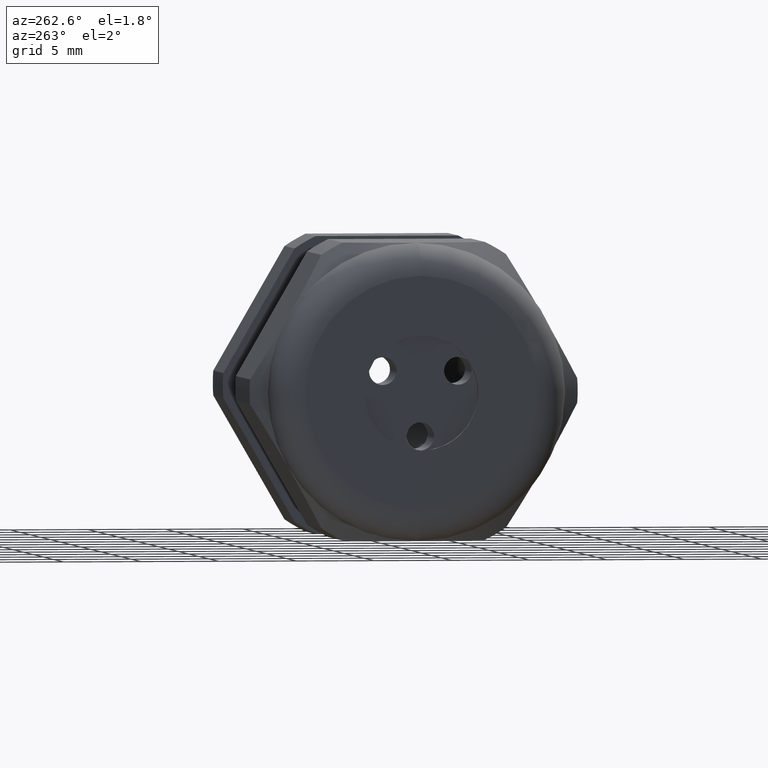
[diagram: clean part render]
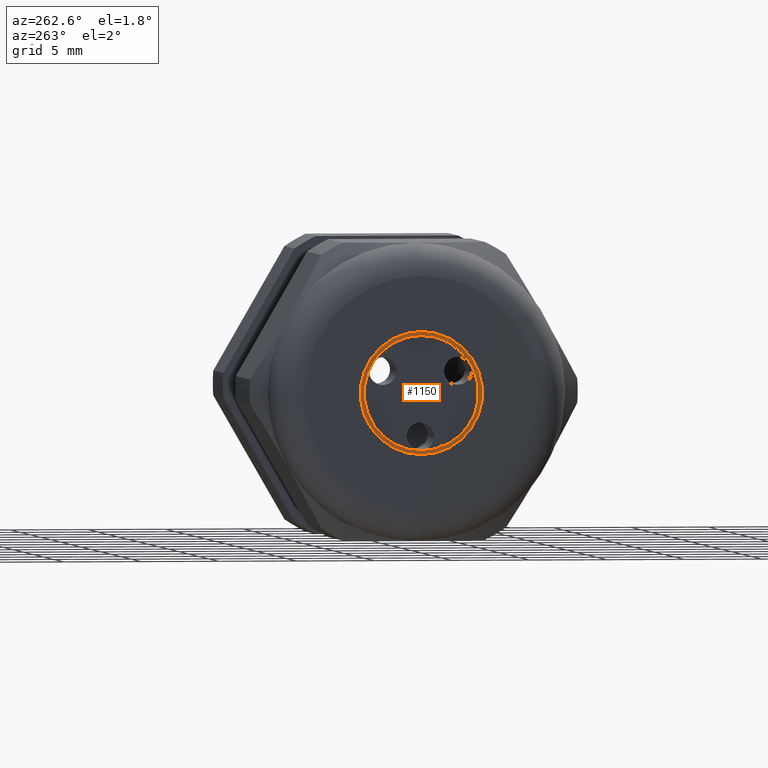
[diagram: same view with one face highlighted and labeled with its STEP entity id]
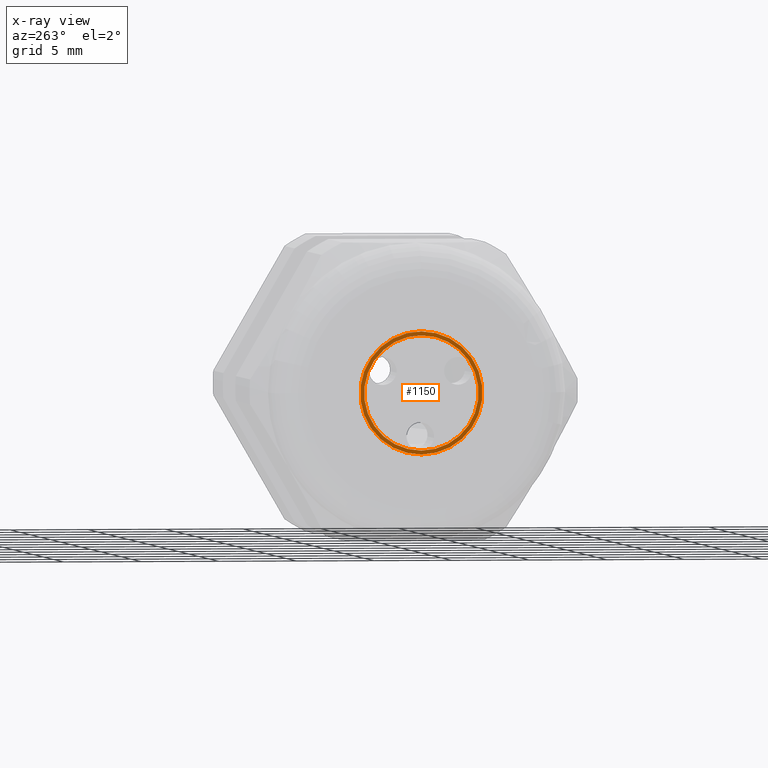
[diagram: x-ray of the same camera — body ghosted, the highlighted face saturated]
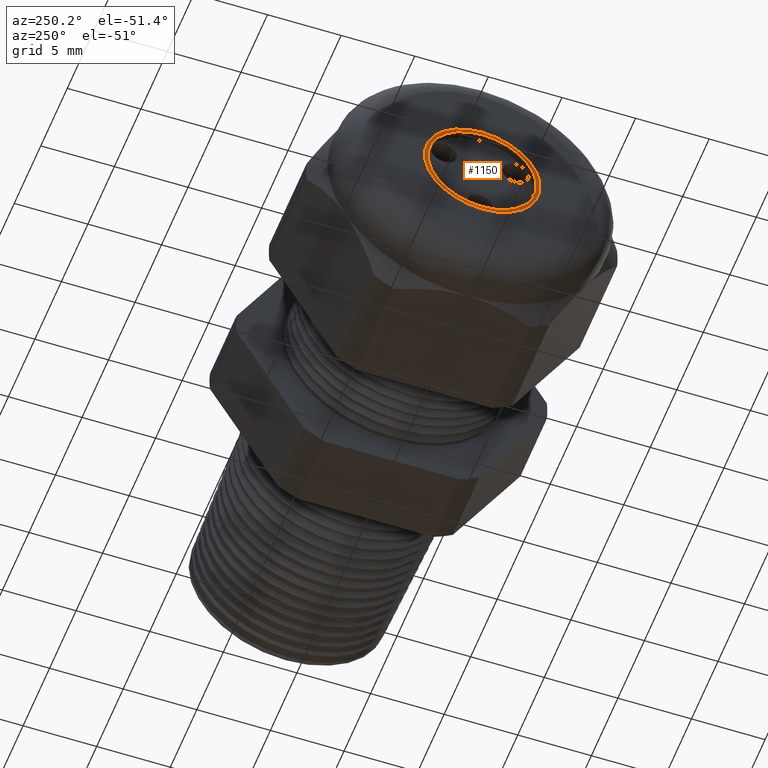
[diagram: same view with one face highlighted and labeled with its STEP entity id]
A machine part, auxiliary view. The second image highlights one B-rep face of the part: STEP entity #1150.
The next image is the same camera in x-ray: the body ghosted, the highlighted face saturated — about 0% of this face is hidden behind the body in this view.
A second angle (auxiliary view) of the same face is appended — the face is thin or edge-on in the first view.
In plain terms, the highlighted planar face has unit normal (-1, 0, 0).
Its self-contained STEP definition (entity closure, byte-faithful):
#1103 = VERTEX_POINT ( 'NONE', #3572 ) ;
#1105 = EDGE_CURVE ( 'NONE', #1107, #1103, #3567, .T. ) ;
#1107 = VERTEX_POINT ( 'NONE', #3620 ) ;
#1138 = ORIENTED_EDGE ( 'NONE', *, *, #1139, .F. ) ;
#1139 = EDGE_CURVE ( 'NONE', #1103, #1107, #3642, .T. ) ;
#1140 = ORIENTED_EDGE ( 'NONE', *, *, #1105, .F. ) ;
#1144 = EDGE_LOOP ( 'NONE', ( #1138, #1140 ) ) ;
#1150 = ADVANCED_FACE ( 'NONE', ( #3632, #3631 ), #3630, .T. ) ;
#1151 = ORIENTED_EDGE ( 'NONE', *, *, #1165, .T. ) ;
#1154 = EDGE_LOOP ( 'NONE', ( #1155, #1151 ) ) ;
#1155 = ORIENTED_EDGE ( 'NONE', *, *, #1171, .T. ) ;
#1165 = EDGE_CURVE ( 'NONE', #1172, #1168, #3669, .T. ) ;
#1168 = VERTEX_POINT ( 'NONE', #3720 ) ;
#1171 = EDGE_CURVE ( 'NONE', #1168, #1172, #3715, .T. ) ;
#1172 = VERTEX_POINT ( 'NONE', #3710 ) ;
#3563 = DIRECTION ( 'NONE',  ( 0.0000000000000000000, 0.0000000000000000000, 1.000000000000000000 ) ) ;
#3564 = DIRECTION ( 'NONE',  ( -1.000000000000000000, 0.0000000000000000000, 0.0000000000000000000 ) ) ;
#3565 = CARTESIAN_POINT ( 'NONE',  ( -1.179999999999999900, 0.0000000000000000000, 0.0000000000000000000 ) ) ;
#3566 = AXIS2_PLACEMENT_3D ( 'NONE', #3565, #3564, #3563 ) ;
#3567 = CIRCLE ( 'NONE', #3566, 0.1449999999999999900 ) ;
#3572 = CARTESIAN_POINT ( 'NONE',  ( -1.179999999999999900, 0.0000000000000000000, 0.1449999999999999900 ) ) ;
#3620 = CARTESIAN_POINT ( 'NONE',  ( -1.179999999999999900, 1.775737858763661900E-017, -0.1449999999999999900 ) ) ;
#3626 = DIRECTION ( 'NONE',  ( 0.0000000000000000000, 0.0000000000000000000, 1.000000000000000000 ) ) ;
#3627 = DIRECTION ( 'NONE',  ( -1.000000000000000000, 0.0000000000000000000, 0.0000000000000000000 ) ) ;
#3628 = CARTESIAN_POINT ( 'NONE',  ( -1.179999999999999900, 0.0000000000000000000, 0.0000000000000000000 ) ) ;
#3629 = AXIS2_PLACEMENT_3D ( 'NONE', #3628, #3627, #3626 ) ;
#3630 = PLANE ( 'NONE',  #3629 ) ;
#3631 = FACE_OUTER_BOUND ( 'NONE', #1154, .T. ) ;
#3632 = FACE_BOUND ( 'NONE', #1144, .T. ) ;
#3638 = DIRECTION ( 'NONE',  ( 0.0000000000000000000, 0.0000000000000000000, 1.000000000000000000 ) ) ;
#3639 = DIRECTION ( 'NONE',  ( -1.000000000000000000, 0.0000000000000000000, 0.0000000000000000000 ) ) ;
#3640 = CARTESIAN_POINT ( 'NONE',  ( -1.179999999999999900, 0.0000000000000000000, 0.0000000000000000000 ) ) ;
#3641 = AXIS2_PLACEMENT_3D ( 'NONE', #3640, #3639, #3638 ) ;
#3642 = CIRCLE ( 'NONE', #3641, 0.1449999999999999900 ) ;
#3665 = DIRECTION ( 'NONE',  ( 0.0000000000000000000, 0.0000000000000000000, 1.000000000000000000 ) ) ;
#3666 = DIRECTION ( 'NONE',  ( -1.000000000000000000, 0.0000000000000000000, 0.0000000000000000000 ) ) ;
#3667 = CARTESIAN_POINT ( 'NONE',  ( -1.179999999999999900, 0.0000000000000000000, 0.0000000000000000000 ) ) ;
#3668 = AXIS2_PLACEMENT_3D ( 'NONE', #3667, #3666, #3665 ) ;
#3669 = CIRCLE ( 'NONE', #3668, 0.1550000000000000000 ) ;
#3710 = CARTESIAN_POINT ( 'NONE',  ( -1.179999999999999900, 1.898202538678397000E-017, -0.1550000000000000000 ) ) ;
#3711 = DIRECTION ( 'NONE',  ( 0.0000000000000000000, 0.0000000000000000000, 1.000000000000000000 ) ) ;
#3712 = DIRECTION ( 'NONE',  ( -1.000000000000000000, 0.0000000000000000000, 0.0000000000000000000 ) ) ;
#3713 = CARTESIAN_POINT ( 'NONE',  ( -1.179999999999999900, 0.0000000000000000000, 0.0000000000000000000 ) ) ;
#3714 = AXIS2_PLACEMENT_3D ( 'NONE', #3713, #3712, #3711 ) ;
#3715 = CIRCLE ( 'NONE', #3714, 0.1550000000000000000 ) ;
#3720 = CARTESIAN_POINT ( 'NONE',  ( -1.179999999999999900, 0.0000000000000000000, 0.1550000000000000000 ) ) ;